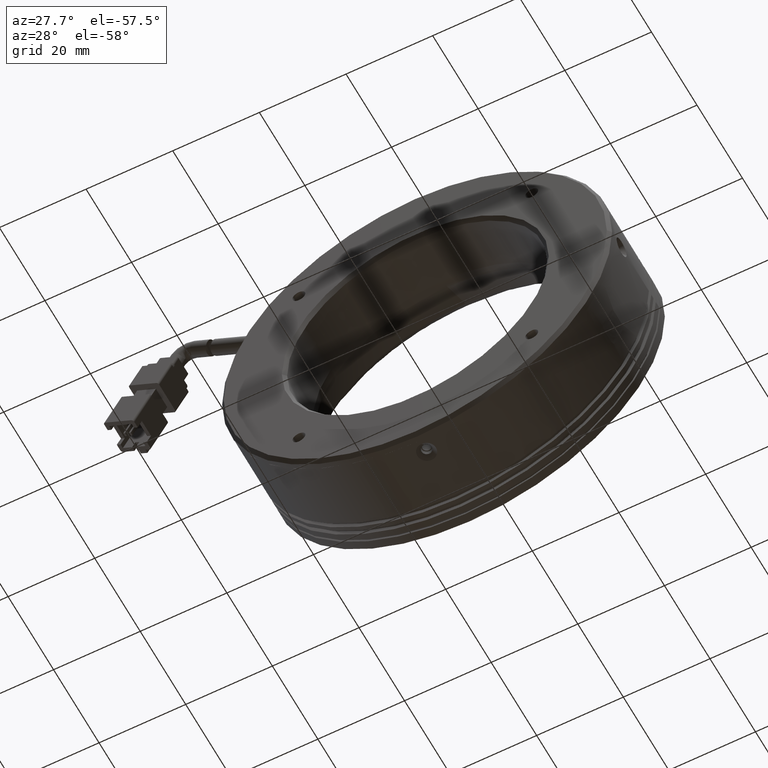
[diagram: clean part render]
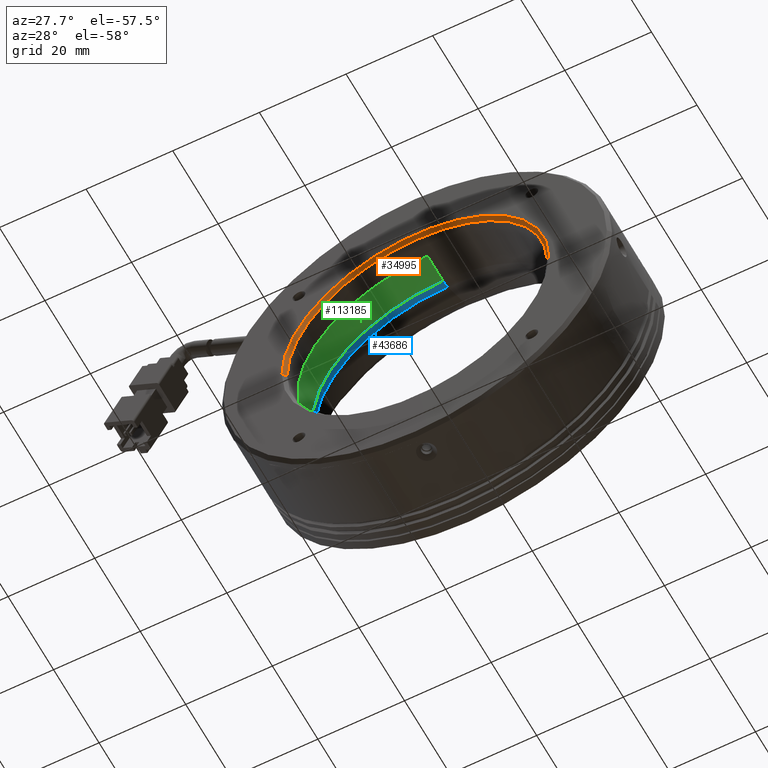
[diagram: same view with three faces highlighted in distinct colors, each labeled with its STEP entity id]
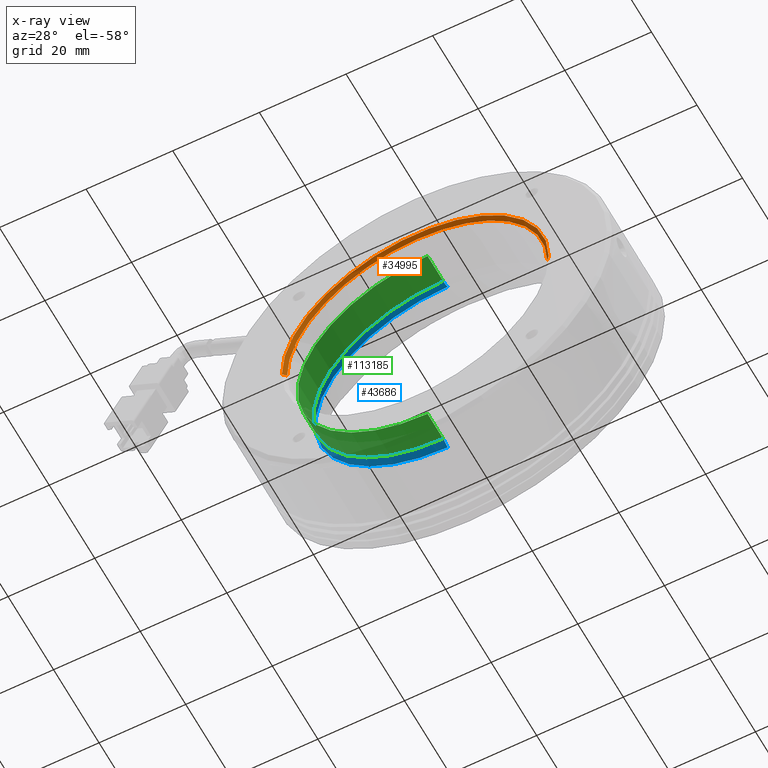
[diagram: x-ray of the same camera — body ghosted, the three highlighted faces saturated]
A machine part, auxiliary view with three faces highlighted in distinct colors.
The next image is the same camera in x-ray (body ghosted, the three faces saturated) — at least one of them is partly hidden behind the body in this view.
Their STEP definitions:

[orange] entity #34995 — the highlighted conical surface has half-angle 45 deg.
#113 = CARTESIAN_POINT ( 'NONE',  ( 21.37667247461710900, 5.773604335538893300, 0.0000000000000000000 ) ) ;
#379 = CARTESIAN_POINT ( 'NONE',  ( 22.17667247461710600, 4.973604335538893500, 0.0000000000000000000 ) ) ;
#1377 = CARTESIAN_POINT ( 'NONE',  ( -39.42332752538288100, 4.973604335538896100, 3.771912141373847600E-015 ) ) ;
#2625 = DIRECTION ( 'NONE',  ( 0.0000000000000000000, 0.0000000000000000000, -1.000000000000000000 ) ) ;
#2844 = CONICAL_SURFACE ( 'NONE', #48226, 30.79999999999999700, 0.7853981633974482800 ) ;
#9013 = DIRECTION ( 'NONE',  ( 0.0000000000000000000, -1.000000000000000000, 0.0000000000000000000 ) ) ;
#11458 = ORIENTED_EDGE ( 'NONE', *, *, #112258, .F. ) ;
#11905 = EDGE_LOOP ( 'NONE', ( #91187, #11458, #116456, #101250, #26190 ) ) ;
#14336 = DIRECTION ( 'NONE',  ( 0.7071067811865474600, -0.7071067811865475700, 0.0000000000000000000 ) ) ;
#18148 = DIRECTION ( 'NONE',  ( -5.632219077846778200E-017, -1.000000000000000000, 0.0000000000000000000 ) ) ;
#18179 = DIRECTION ( 'NONE',  ( -5.632219077846778200E-017, -1.000000000000000000, 0.0000000000000000000 ) ) ;
#19038 = EDGE_CURVE ( 'NONE', #69246, #113339, #22064, .T. ) ;
#20880 = CARTESIAN_POINT ( 'NONE',  ( -38.62332752538289100, 5.773604335538893300, 3.722926269407954200E-015 ) ) ;
#21755 = CIRCLE ( 'NONE', #106881, 30.00000000000000000 ) ;
#22064 = LINE ( 'NONE', #1377, #70391 ) ;
#23626 = VECTOR ( 'NONE', #14336, 1000.000000000000000 ) ;
#26190 = ORIENTED_EDGE ( 'NONE', *, *, #64225, .T. ) ;
#26665 = LINE ( 'NONE', #81928, #23626 ) ;
#34995 = ADVANCED_FACE ( 'NONE', ( #40733 ), #2844, .F. ) ;
#37172 = CARTESIAN_POINT ( 'NONE',  ( -8.623327525382887200, 5.773604335538893300, 30.00000000000000000 ) ) ;
#40733 = FACE_OUTER_BOUND ( 'NONE', #11905, .T. ) ;
#48226 = AXIS2_PLACEMENT_3D ( 'NONE', #66323, #18148, #56964 ) ;
#56964 = DIRECTION ( 'NONE',  ( 1.000000000000000000, -5.632219077846777000E-017, 0.0000000000000000000 ) ) ;
#60514 = DIRECTION ( 'NONE',  ( 0.0000000000000000000, -1.000000000000000000, 0.0000000000000000000 ) ) ;
#64225 = EDGE_CURVE ( 'NONE', #64328, #113339, #91572, .T. ) ;
#64328 = VERTEX_POINT ( 'NONE', #379 ) ;
#66323 = CARTESIAN_POINT ( 'NONE',  ( -8.623327525382890700, 4.973604335538894400, 0.0000000000000000000 ) ) ;
#66904 = CARTESIAN_POINT ( 'NONE',  ( -8.623327525382890700, 5.773604335538893300, 0.0000000000000000000 ) ) ;
#69246 = VERTEX_POINT ( 'NONE', #20880 ) ;
#69288 = EDGE_CURVE ( 'NONE', #89283, #106775, #21755, .T. ) ;
#70391 = VECTOR ( 'NONE', #78694, 1000.000000000000000 ) ;
#76031 = CARTESIAN_POINT ( 'NONE',  ( -8.623327525382890700, 4.973604335538894400, 0.0000000000000000000 ) ) ;
#76628 = DIRECTION ( 'NONE',  ( 0.0000000000000000000, 0.0000000000000000000, -1.000000000000000000 ) ) ;
#78694 = DIRECTION ( 'NONE',  ( -0.7071067811865474600, -0.7071067811865475700, 8.659560562354931600E-017 ) ) ;
#81928 = CARTESIAN_POINT ( 'NONE',  ( 22.17667247461710600, 4.973604335538893500, 0.0000000000000000000 ) ) ;
#85810 = DIRECTION ( 'NONE',  ( 1.000000000000000000, -5.632219077846777000E-017, 0.0000000000000000000 ) ) ;
#86126 = CARTESIAN_POINT ( 'NONE',  ( -39.42332752538288100, 4.973604335538896100, 3.771912141373847600E-015 ) ) ;
#89283 = VERTEX_POINT ( 'NONE', #113 ) ;
#91187 = ORIENTED_EDGE ( 'NONE', *, *, #19038, .F. ) ;
#91572 = CIRCLE ( 'NONE', #125321, 30.79999999999999700 ) ;
#94229 = CIRCLE ( 'NONE', #101481, 30.00000000000000000 ) ;
#101250 = ORIENTED_EDGE ( 'NONE', *, *, #111474, .T. ) ;
#101481 = AXIS2_PLACEMENT_3D ( 'NONE', #66904, #9013, #76628 ) ;
#106775 = VERTEX_POINT ( 'NONE', #37172 ) ;
#106881 = AXIS2_PLACEMENT_3D ( 'NONE', #118560, #60514, #2625 ) ;
#111474 = EDGE_CURVE ( 'NONE', #89283, #64328, #26665, .T. ) ;
#112258 = EDGE_CURVE ( 'NONE', #106775, #69246, #94229, .T. ) ;
#113339 = VERTEX_POINT ( 'NONE', #86126 ) ;
#116456 = ORIENTED_EDGE ( 'NONE', *, *, #69288, .F. ) ;
#118560 = CARTESIAN_POINT ( 'NONE',  ( -8.623327525382890700, 5.773604335538893300, 0.0000000000000000000 ) ) ;
#125321 = AXIS2_PLACEMENT_3D ( 'NONE', #76031, #18179, #85810 ) ;

[blue] entity #43686 — the highlighted face is a freeform B-spline surface patch.
#1633 = CARTESIAN_POINT ( 'NONE',  ( -8.623327525382897800, 19.17937570147887900, -30.53589838486223200 ) ) ;
#9120 = DIRECTION ( 'NONE',  ( -1.000000000000000000, 0.0000000000000000000, 1.224646799147353200E-016 ) ) ;
#9419 = AXIS2_PLACEMENT_3D ( 'NONE', #19132, #86765, #28863 ) ;
#11356 = CARTESIAN_POINT ( 'NONE',  ( -68.98889744389563800, 18.56776530749483100, 30.18278495925639500 ) ) ;
#11813 = EDGE_LOOP ( 'NONE', ( #29147, #48502, #48913, #41600 ) ) ;
#14187 = VERTEX_POINT ( 'NONE', #48481 ) ;
#15904 = CIRCLE ( 'NONE', #46585, 30.53589838486223900 ) ;
#16843 = EDGE_CURVE ( 'NONE', #122236, #71462, #122809, .T. ) ;
#17973 = DIRECTION ( 'NONE',  ( -0.0000000000000000000, 1.000000000000000000, -0.0000000000000000000 ) ) ;
#19132 = CARTESIAN_POINT ( 'NONE',  ( -8.623327525382890700, 17.17937570147888600, 1.040834085586084300E-014 ) ) ;
#21127 = CARTESIAN_POINT ( 'NONE',  ( -8.623327525382897800, 18.56776530749483500, -30.18278495925636300 ) ) ;
#28863 = DIRECTION ( 'NONE',  ( 0.0000000000000000000, 0.0000000000000000000, -1.000000000000000000 ) ) ;
#29147 = ORIENTED_EDGE ( 'NONE', *, *, #104718, .T. ) ;
#30833 = CARTESIAN_POINT ( 'NONE',  ( -68.62332752538287700, 17.88560255269061000, 30.00000000000001400 ) ) ;
#40540 = CARTESIAN_POINT ( 'NONE',  ( -8.623327525382897800, 17.88560255269061400, -29.99999999999998900 ) ) ;
#41600 = ORIENTED_EDGE ( 'NONE', *, *, #16843, .F. ) ;
#41844 = DIRECTION ( 'NONE',  ( 1.000000000000000000, 0.0000000000000000000, 0.0000000000000000000 ) ) ;
#43686 = ADVANCED_FACE ( 'NONE', ( #81066 ), #87907, .T. ) ;
#46585 = AXIS2_PLACEMENT_3D ( 'NONE', #75817, #17973, #85598 ) ;
#48481 = CARTESIAN_POINT ( 'NONE',  ( -8.623327525382890700, 19.17937570147887500, 30.53589838486225000 ) ) ;
#48502 = ORIENTED_EDGE ( 'NONE', *, *, #49335, .T. ) ;
#48913 = ORIENTED_EDGE ( 'NONE', *, *, #54151, .T. ) ;
#49335 = EDGE_CURVE ( 'NONE', #14187, #68793, #69220, .T. ) ;
#50210 = CARTESIAN_POINT ( 'NONE',  ( -68.62332752538286200, 17.17937570147888600, 30.00000000000001800 ) ) ;
#54151 = EDGE_CURVE ( 'NONE', #68793, #71462, #122774, .T. ) ;
#57438 = CARTESIAN_POINT ( 'NONE',  ( -8.623327525382887200, 17.17937570147888600, -29.99999999999999300 ) ) ;
#59525 = CARTESIAN_POINT ( 'NONE',  ( -69.69512429510736200, 19.17937570147888200, -30.53589838486221500 ) ) ;
#59798 = AXIS2_PLACEMENT_3D ( 'NONE', #99842, #41844, #109606 ) ;
#59939 = CARTESIAN_POINT ( 'NONE',  ( -8.623327525382897800, 17.17937570147888600, -29.99999999999998900 ) ) ;
#67036 = CARTESIAN_POINT ( 'NONE',  ( -8.623327525382887200, 17.17937570147888600, 34.00000000000000700 ) ) ;
#68793 = VERTEX_POINT ( 'NONE', #108282 ) ;
#69220 = CIRCLE ( 'NONE', #122862, 3.999999999999996400 ) ;
#69277 = CARTESIAN_POINT ( 'NONE',  ( -8.623327525382885400, 18.56776530749483500, 30.18278495925638800 ) ) ;
#71462 = VERTEX_POINT ( 'NONE', #57438 ) ;
#75817 = CARTESIAN_POINT ( 'NONE',  ( -8.623327525382890700, 19.17937570147887900, 1.040834085586084300E-014 ) ) ;
#76734 = DIRECTION ( 'NONE',  ( 0.0000000000000000000, 0.0000000000000000000, 1.000000000000000000 ) ) ;
#78543 = CARTESIAN_POINT ( 'NONE',  ( -8.623327525382887200, 19.17937570147887900, 30.53589838486225400 ) ) ;
#78964 = CARTESIAN_POINT ( 'NONE',  ( -68.98889744389563800, 18.56776530749483100, -30.18278495925636000 ) ) ;
#81066 = FACE_OUTER_BOUND ( 'NONE', #11813, .T. ) ;
#85598 = DIRECTION ( 'NONE',  ( 0.0000000000000000000, -1.136186303813987500E-016, 1.000000000000000000 ) ) ;
#86765 = DIRECTION ( 'NONE',  ( 0.0000000000000000000, -1.000000000000000000, 0.0000000000000000000 ) ) ;
#87907 =( BOUNDED_SURFACE ( )  B_SPLINE_SURFACE ( 3, 3, ( 
 ( #78543, #117597, #59525, #1633 ),
 ( #69277, #11356, #78964, #21127 ),
 ( #88794, #30833, #98527, #40540 ),
 ( #108326, #50210, #117990, #59939 ) ),
 .UNSPECIFIED., .F., .F., .F. ) 
 B_SPLINE_SURFACE_WITH_KNOTS ( ( 4, 4 ),
 ( 4, 4 ),
 ( 0.0000000000000000000, 1.000000000000000000 ),
 ( 0.0000000000000000000, 1.000000000000000000 ),
 .UNSPECIFIED. ) 
 GEOMETRIC_REPRESENTATION_ITEM ( )  RATIONAL_B_SPLINE_SURFACE ( (
 ( 1.000000000000000000, 0.3333333333333334300, 0.3333333333333334300, 1.000000000000000000),
 ( 0.9772838841927123900, 0.3257612947309042100, 0.3257612947309042100, 0.9772838841927123900),
 ( 0.9772838841927123900, 0.3257612947309042100, 0.3257612947309042100, 0.9772838841927123900),
 ( 1.000000000000000000, 0.3333333333333334300, 0.3333333333333334300, 1.000000000000000000) ) ) 
 REPRESENTATION_ITEM ( '' )  SURFACE ( )  );
#88794 = CARTESIAN_POINT ( 'NONE',  ( -8.623327525382885400, 17.88560255269061400, 30.00000000000000400 ) ) ;
#98527 = CARTESIAN_POINT ( 'NONE',  ( -68.62332752538289100, 17.88560255269061000, -29.99999999999997200 ) ) ;
#99842 = CARTESIAN_POINT ( 'NONE',  ( -8.623327525382890700, 17.17937570147888600, -33.99999999999998600 ) ) ;
#101995 = CARTESIAN_POINT ( 'NONE',  ( -8.623327525382887200, 19.17937570147887900, -30.53589838486222900 ) ) ;
#104718 = EDGE_CURVE ( 'NONE', #122236, #14187, #15904, .T. ) ;
#108282 = CARTESIAN_POINT ( 'NONE',  ( -8.623327525382890700, 17.17937570147888600, 30.00000000000001400 ) ) ;
#108326 = CARTESIAN_POINT ( 'NONE',  ( -8.623327525382887200, 17.17937570147888600, 30.00000000000001100 ) ) ;
#109606 = DIRECTION ( 'NONE',  ( 0.0000000000000000000, 0.0000000000000000000, -1.000000000000000000 ) ) ;
#117597 = CARTESIAN_POINT ( 'NONE',  ( -69.69512429510736200, 19.17937570147888200, 30.53589838486225700 ) ) ;
#117990 = CARTESIAN_POINT ( 'NONE',  ( -68.62332752538289100, 17.17937570147888600, -29.99999999999997500 ) ) ;
#122236 = VERTEX_POINT ( 'NONE', #101995 ) ;
#122774 = CIRCLE ( 'NONE', #9419, 30.00000000000000000 ) ;
#122809 = CIRCLE ( 'NONE', #59798, 4.000000000000003600 ) ;
#122862 = AXIS2_PLACEMENT_3D ( 'NONE', #67036, #9120, #76734 ) ;

[green] entity #113185 — the highlighted cylindrical surface (partial cylindrical patch) has radius 30 mm, axis along (-0, 1, -0).
#5965 = ORIENTED_EDGE ( 'NONE', *, *, #104168, .F. ) ;
#8129 = CARTESIAN_POINT ( 'NONE',  ( -8.623327525382890700, 10.37360433553891100, 30.00000000000002100 ) ) ;
#9419 = AXIS2_PLACEMENT_3D ( 'NONE', #19132, #86765, #28863 ) ;
#12535 = EDGE_CURVE ( 'NONE', #66600, #71462, #97310, .T. ) ;
#15059 = CARTESIAN_POINT ( 'NONE',  ( -8.623327525382887200, 59.97794105887670200, -30.00000000000000000 ) ) ;
#17120 = VECTOR ( 'NONE', #63600, 1000.000000000000000 ) ;
#19132 = CARTESIAN_POINT ( 'NONE',  ( -8.623327525382890700, 17.17937570147888600, 1.040834085586084300E-014 ) ) ;
#24910 = CARTESIAN_POINT ( 'NONE',  ( -8.623327525382890700, 59.97794105887670200, 1.040834085586084300E-014 ) ) ;
#25426 = CIRCLE ( 'NONE', #53993, 30.00000000000001100 ) ;
#28863 = DIRECTION ( 'NONE',  ( 0.0000000000000000000, 0.0000000000000000000, -1.000000000000000000 ) ) ;
#30071 = CARTESIAN_POINT ( 'NONE',  ( -8.623327525382890700, 10.37360433553891100, 1.040834085586084300E-014 ) ) ;
#32931 = ORIENTED_EDGE ( 'NONE', *, *, #120444, .F. ) ;
#34174 = DIRECTION ( 'NONE',  ( -0.0000000000000000000, 1.000000000000000000, -0.0000000000000000000 ) ) ;
#36751 = CARTESIAN_POINT ( 'NONE',  ( -8.623327525382890700, 59.97794105887670200, 30.00000000000002100 ) ) ;
#39810 = DIRECTION ( 'NONE',  ( 0.0000000000000000000, 0.0000000000000000000, 1.000000000000000000 ) ) ;
#46293 = VECTOR ( 'NONE', #75540, 1000.000000000000000 ) ;
#51182 = FACE_OUTER_BOUND ( 'NONE', #117966, .T. ) ;
#51719 = ORIENTED_EDGE ( 'NONE', *, *, #54151, .F. ) ;
#53993 = AXIS2_PLACEMENT_3D ( 'NONE', #30071, #97757, #39810 ) ;
#54151 = EDGE_CURVE ( 'NONE', #68793, #71462, #122774, .T. ) ;
#57438 = CARTESIAN_POINT ( 'NONE',  ( -8.623327525382887200, 17.17937570147888600, -29.99999999999999300 ) ) ;
#63600 = DIRECTION ( 'NONE',  ( -0.0000000000000000000, 1.000000000000000000, -0.0000000000000000000 ) ) ;
#66600 = VERTEX_POINT ( 'NONE', #87787 ) ;
#68793 = VERTEX_POINT ( 'NONE', #108282 ) ;
#71462 = VERTEX_POINT ( 'NONE', #57438 ) ;
#71969 = LINE ( 'NONE', #36751, #46293 ) ;
#74123 = VERTEX_POINT ( 'NONE', #8129 ) ;
#75540 = DIRECTION ( 'NONE',  ( -0.0000000000000000000, 1.000000000000000000, -0.0000000000000000000 ) ) ;
#86765 = DIRECTION ( 'NONE',  ( 0.0000000000000000000, -1.000000000000000000, 0.0000000000000000000 ) ) ;
#87787 = CARTESIAN_POINT ( 'NONE',  ( -8.623327525382887200, 10.37360433553891100, -30.00000000000000000 ) ) ;
#90598 = CYLINDRICAL_SURFACE ( 'NONE', #117075, 30.00000000000001100 ) ;
#92537 = DIRECTION ( 'NONE',  ( 0.0000000000000000000, 0.0000000000000000000, 1.000000000000000000 ) ) ;
#97310 = LINE ( 'NONE', #15059, #17120 ) ;
#97757 = DIRECTION ( 'NONE',  ( -0.0000000000000000000, 1.000000000000000000, -0.0000000000000000000 ) ) ;
#104168 = EDGE_CURVE ( 'NONE', #74123, #68793, #71969, .T. ) ;
#105430 = ORIENTED_EDGE ( 'NONE', *, *, #12535, .T. ) ;
#108282 = CARTESIAN_POINT ( 'NONE',  ( -8.623327525382890700, 17.17937570147888600, 30.00000000000001400 ) ) ;
#113185 = ADVANCED_FACE ( 'NONE', ( #51182 ), #90598, .F. ) ;
#117075 = AXIS2_PLACEMENT_3D ( 'NONE', #24910, #34174, #92537 ) ;
#117966 = EDGE_LOOP ( 'NONE', ( #32931, #105430, #51719, #5965 ) ) ;
#120444 = EDGE_CURVE ( 'NONE', #66600, #74123, #25426, .T. ) ;
#122774 = CIRCLE ( 'NONE', #9419, 30.00000000000000000 ) ;